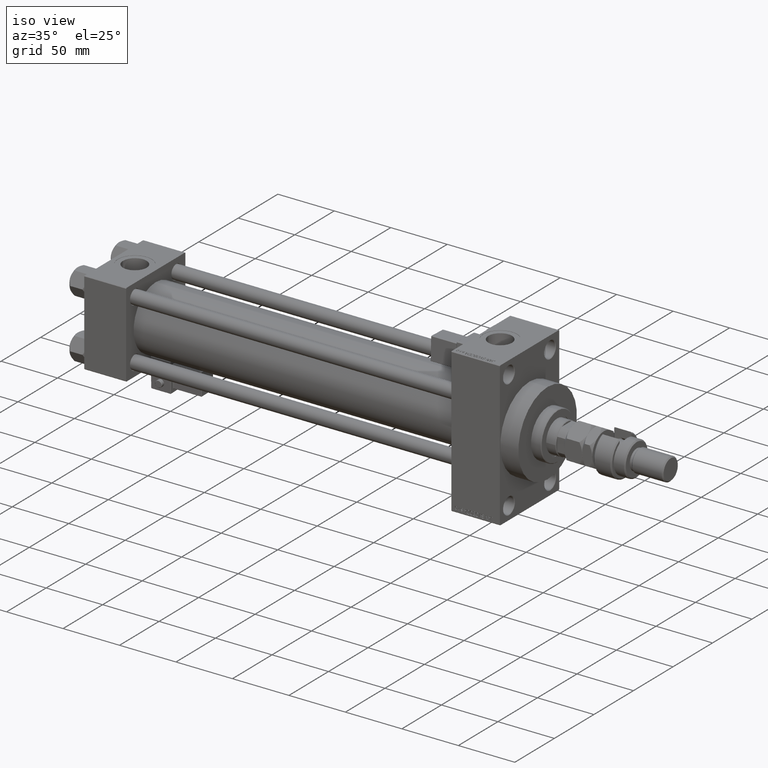
[diagram: clean part render]
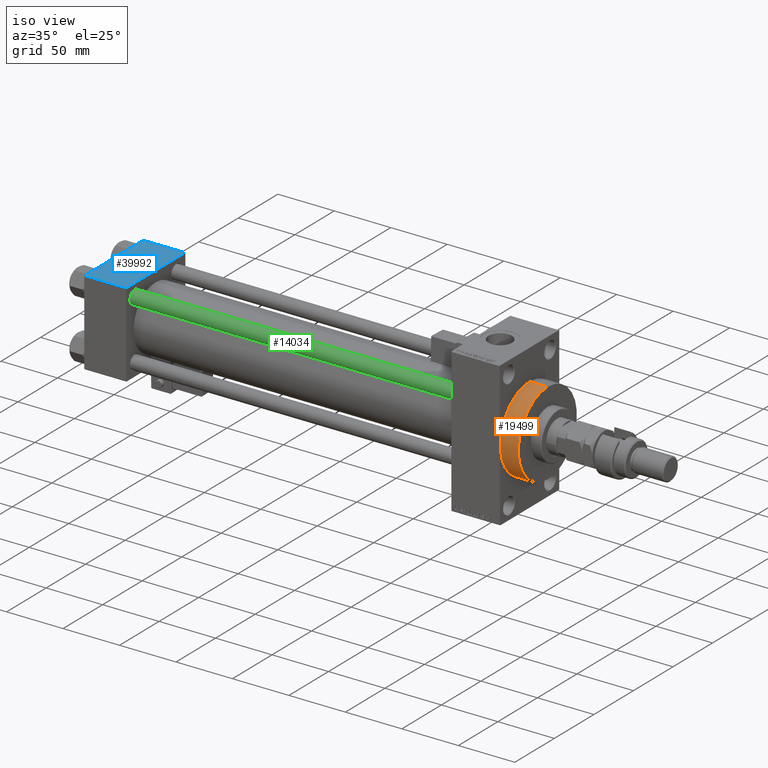
[diagram: same view with three faces highlighted in distinct colors, each labeled with its STEP entity id]
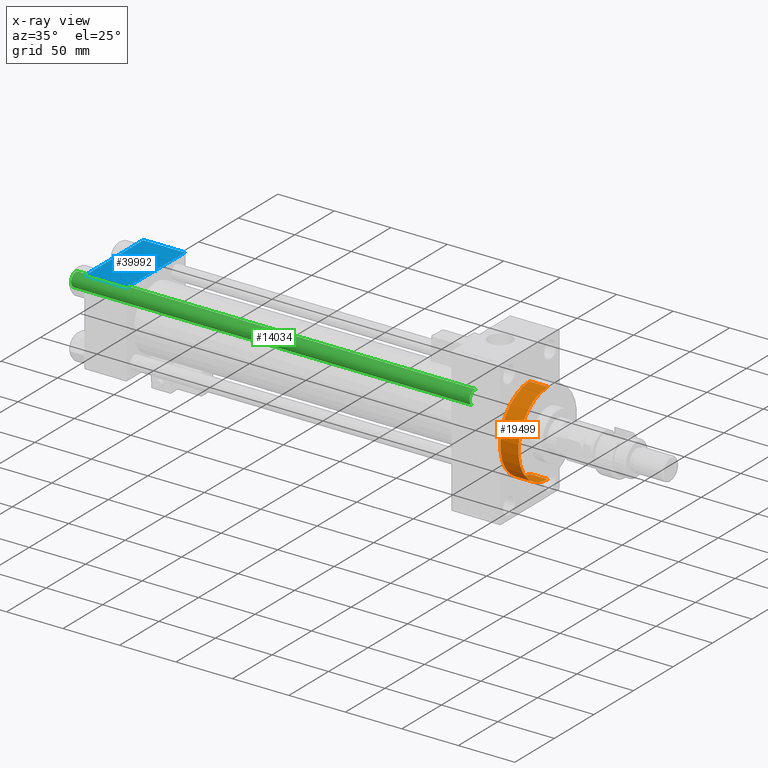
[diagram: x-ray of the same camera — body ghosted, the three highlighted faces saturated]
A machine part, iso view with three faces highlighted in distinct colors.
The next image is the same camera in x-ray (body ghosted, the three faces saturated) — at least one of them is partly hidden behind the body in this view.
Their STEP definitions:

[orange] entity #19499 — the highlighted cylindrical surface (partial cylindrical patch) has radius 37 mm, axis along (-1, -0, -0).
#1671 = FACE_OUTER_BOUND ( 'NONE', #37099, .T. ) ;
#2086 = AXIS2_PLACEMENT_3D ( 'NONE', #49324, #4409, #28714 ) ;
#2318 = CARTESIAN_POINT ( 'NONE',  ( 383.9999999999999432, 0.000000000000000000, 37.00000000000000000 ) ) ;
#4409 = DIRECTION ( 'NONE',  ( 1.000000000000000000, 0.000000000000000000, 0.000000000000000000 ) ) ;
#5897 = CYLINDRICAL_SURFACE ( 'NONE', #47143, 37.00000000000000000 ) ;
#6078 = CARTESIAN_POINT ( 'NONE',  ( 383.9999999999999432, 4.531193156845206793E-15, -37.00000000000000000 ) ) ;
#6595 = CARTESIAN_POINT ( 'NONE',  ( 367.9999999999999432, 0.000000000000000000, 0.000000000000000000 ) ) ;
#6883 = CARTESIAN_POINT ( 'NONE',  ( 367.9999999999999432, 4.531193156845206793E-15, -37.00000000000000000 ) ) ;
#8008 = ORIENTED_EDGE ( 'NONE', *, *, #43311, .T. ) ;
#9587 = AXIS2_PLACEMENT_3D ( 'NONE', #6595, #38042, #34061 ) ;
#11241 = EDGE_CURVE ( 'NONE', #35796, #19002, #22378, .T. ) ;
#13458 = ORIENTED_EDGE ( 'NONE', *, *, #43273, .F. ) ;
#13484 = LINE ( 'NONE', #6078, #41677 ) ;
#13995 = DIRECTION ( 'NONE',  ( -1.000000000000000000, -0.000000000000000000, -0.000000000000000000 ) ) ;
#14684 = CIRCLE ( 'NONE', #9587, 37.00000000000000000 ) ;
#16992 = DIRECTION ( 'NONE',  ( 0.000000000000000000, 0.000000000000000000, 1.000000000000000000 ) ) ;
#17768 = CARTESIAN_POINT ( 'NONE',  ( 383.9999999999999432, 0.000000000000000000, 0.000000000000000000 ) ) ;
#17913 = ORIENTED_EDGE ( 'NONE', *, *, #11241, .T. ) ;
#19002 = VERTEX_POINT ( 'NONE', #52046 ) ;
#19499 = ADVANCED_FACE ( 'NONE', ( #1671 ), #5897, .T. ) ;
#19926 = VERTEX_POINT ( 'NONE', #6883 ) ;
#19983 = DIRECTION ( 'NONE',  ( -1.000000000000000000, -0.000000000000000000, -0.000000000000000000 ) ) ;
#22378 = LINE ( 'NONE', #2318, #27870 ) ;
#24243 = CARTESIAN_POINT ( 'NONE',  ( 383.9999999999999432, 0.000000000000000000, 37.00000000000000000 ) ) ;
#27020 = ORIENTED_EDGE ( 'NONE', *, *, #45762, .F. ) ;
#27870 = VECTOR ( 'NONE', #19983, 1000.000000000000000 ) ;
#28714 = DIRECTION ( 'NONE',  ( 0.000000000000000000, 0.000000000000000000, -1.000000000000000000 ) ) ;
#30307 = VERTEX_POINT ( 'NONE', #44906 ) ;
#34061 = DIRECTION ( 'NONE',  ( 0.000000000000000000, 0.000000000000000000, -1.000000000000000000 ) ) ;
#35796 = VERTEX_POINT ( 'NONE', #24243 ) ;
#37099 = EDGE_LOOP ( 'NONE', ( #13458, #27020, #17913, #8008 ) ) ;
#37536 = CIRCLE ( 'NONE', #2086, 37.00000000000000000 ) ;
#38042 = DIRECTION ( 'NONE',  ( 1.000000000000000000, 0.000000000000000000, 0.000000000000000000 ) ) ;
#41677 = VECTOR ( 'NONE', #13995, 1000.000000000000000 ) ;
#43273 = EDGE_CURVE ( 'NONE', #30307, #19926, #13484, .T. ) ;
#43311 = EDGE_CURVE ( 'NONE', #19002, #19926, #14684, .T. ) ;
#44906 = CARTESIAN_POINT ( 'NONE',  ( 383.9999999999999432, 4.531193156845206793E-15, -37.00000000000000000 ) ) ;
#45762 = EDGE_CURVE ( 'NONE', #35796, #30307, #37536, .T. ) ;
#45803 = DIRECTION ( 'NONE',  ( -1.000000000000000000, -0.000000000000000000, -0.000000000000000000 ) ) ;
#47143 = AXIS2_PLACEMENT_3D ( 'NONE', #17768, #45803, #16992 ) ;
#49324 = CARTESIAN_POINT ( 'NONE',  ( 383.9999999999999432, 0.000000000000000000, 0.000000000000000000 ) ) ;
#52046 = CARTESIAN_POINT ( 'NONE',  ( 367.9999999999999432, 0.000000000000000000, 37.00000000000000000 ) ) ;

[blue] entity #39992 — the highlighted planar face has unit normal (0, 0, -1).
#212 = CIRCLE ( 'NONE', #44929, 15.00000000000000355 ) ;
#1943 = LINE ( 'NONE', #13837, #16451 ) ;
#2122 = CARTESIAN_POINT ( 'NONE',  ( 37.00000000000000000, -37.00000000000000711, 37.49999999999999289 ) ) ;
#3927 = ORIENTED_EDGE ( 'NONE', *, *, #41899, .T. ) ;
#6093 = LINE ( 'NONE', #2122, #37716 ) ;
#6254 = CARTESIAN_POINT ( 'NONE',  ( 37.00000000000000000, 37.49999999999999289, 37.50000000000000000 ) ) ;
#7253 = EDGE_CURVE ( 'NONE', #14521, #30788, #23665, .T. ) ;
#9986 = CARTESIAN_POINT ( 'NONE',  ( 18.50000000000000000, -5.204170427930421283E-15, 37.50000000000000000 ) ) ;
#13837 = CARTESIAN_POINT ( 'NONE',  ( 37.00000000000000000, 37.49999999999999289, 37.50000000000000000 ) ) ;
#14272 = VERTEX_POINT ( 'NONE', #24072 ) ;
#14521 = VERTEX_POINT ( 'NONE', #40377 ) ;
#15285 = DIRECTION ( 'NONE',  ( 1.000000000000000000, 0.000000000000000000, 0.000000000000000000 ) ) ;
#16451 = VECTOR ( 'NONE', #41830, 1000.000000000000000 ) ;
#18590 = EDGE_CURVE ( 'NONE', #30788, #14272, #49493, .T. ) ;
#19177 = FACE_BOUND ( 'NONE', #37588, .T. ) ;
#19675 = DIRECTION ( 'NONE',  ( -1.000000000000000000, 0.000000000000000000, 0.000000000000000000 ) ) ;
#20932 = DIRECTION ( 'NONE',  ( 0.000000000000000000, -1.000000000000000000, -9.251858538542971581E-17 ) ) ;
#21954 = VERTEX_POINT ( 'NONE', #38946 ) ;
#22440 = DIRECTION ( 'NONE',  ( 1.000000000000000000, 0.000000000000000000, 0.000000000000000000 ) ) ;
#23665 = LINE ( 'NONE', #27618, #36977 ) ;
#23843 = ORIENTED_EDGE ( 'NONE', *, *, #45536, .F. ) ;
#24072 = CARTESIAN_POINT ( 'NONE',  ( 0.000000000000000000, -37.00000000000000711, 37.49999999999999289 ) ) ;
#26102 = DIRECTION ( 'NONE',  ( 0.000000000000000000, 0.000000000000000000, 1.000000000000000000 ) ) ;
#26328 = DIRECTION ( 'NONE',  ( 0.000000000000000000, 9.251858538542971581E-17, -1.000000000000000000 ) ) ;
#27618 = CARTESIAN_POINT ( 'NONE',  ( 0.000000000000000000, 36.99999999999999289, 37.50000000000000000 ) ) ;
#27915 = EDGE_LOOP ( 'NONE', ( #28030, #3927, #39054, #32459 ) ) ;
#28030 = ORIENTED_EDGE ( 'NONE', *, *, #18590, .T. ) ;
#29109 = AXIS2_PLACEMENT_3D ( 'NONE', #6254, #26328, #31348 ) ;
#30775 = CIRCLE ( 'NONE', #51058, 15.00000000000000355 ) ;
#30788 = VERTEX_POINT ( 'NONE', #37161 ) ;
#30825 = ORIENTED_EDGE ( 'NONE', *, *, #31366, .F. ) ;
#31128 = CARTESIAN_POINT ( 'NONE',  ( 18.50000000000000000, -5.204170427930421283E-15, 37.50000000000000000 ) ) ;
#31348 = DIRECTION ( 'NONE',  ( 0.000000000000000000, 1.000000000000000000, 9.251858538542971581E-17 ) ) ;
#31366 = EDGE_CURVE ( 'NONE', #41476, #48144, #212, .T. ) ;
#32459 = ORIENTED_EDGE ( 'NONE', *, *, #7253, .T. ) ;
#32837 = CARTESIAN_POINT ( 'NONE',  ( 0.000000000000000000, 37.49999999999999289, 37.50000000000000000 ) ) ;
#36977 = VECTOR ( 'NONE', #19675, 1000.000000000000000 ) ;
#37161 = CARTESIAN_POINT ( 'NONE',  ( 0.000000000000000000, 36.99999999999999289, 37.50000000000000000 ) ) ;
#37588 = EDGE_LOOP ( 'NONE', ( #23843, #30825 ) ) ;
#37716 = VECTOR ( 'NONE', #22440, 1000.000000000000000 ) ;
#38946 = CARTESIAN_POINT ( 'NONE',  ( 37.00000000000000000, -37.00000000000000711, 37.49999999999999289 ) ) ;
#39054 = ORIENTED_EDGE ( 'NONE', *, *, #46220, .F. ) ;
#39848 = DIRECTION ( 'NONE',  ( 0.000000000000000000, 0.000000000000000000, 1.000000000000000000 ) ) ;
#39992 = ADVANCED_FACE ( 'NONE', ( #19177, #42442 ), #46431, .F. ) ;
#40377 = CARTESIAN_POINT ( 'NONE',  ( 37.00000000000000000, 36.99999999999999289, 37.50000000000000000 ) ) ;
#41476 = VERTEX_POINT ( 'NONE', #49249 ) ;
#41830 = DIRECTION ( 'NONE',  ( 0.000000000000000000, -1.000000000000000000, -9.251858538542971581E-17 ) ) ;
#41899 = EDGE_CURVE ( 'NONE', #14272, #21954, #6093, .T. ) ;
#42442 = FACE_OUTER_BOUND ( 'NONE', #27915, .T. ) ;
#44929 = AXIS2_PLACEMENT_3D ( 'NONE', #31128, #39848, #15285 ) ;
#45536 = EDGE_CURVE ( 'NONE', #48144, #41476, #30775, .T. ) ;
#46220 = EDGE_CURVE ( 'NONE', #14521, #21954, #1943, .T. ) ;
#46431 = PLANE ( 'NONE',  #29109 ) ;
#47517 = DIRECTION ( 'NONE',  ( 1.000000000000000000, 0.000000000000000000, 0.000000000000000000 ) ) ;
#47602 = CARTESIAN_POINT ( 'NONE',  ( 33.50000000000000000, -5.204170427930421283E-15, 37.50000000000000000 ) ) ;
#48144 = VERTEX_POINT ( 'NONE', #47602 ) ;
#49249 = CARTESIAN_POINT ( 'NONE',  ( 3.499999999999997780, -3.367200229209391300E-15, 37.50000000000000000 ) ) ;
#49493 = LINE ( 'NONE', #32837, #51331 ) ;
#51058 = AXIS2_PLACEMENT_3D ( 'NONE', #9986, #26102, #47517 ) ;
#51331 = VECTOR ( 'NONE', #20932, 1000.000000000000000 ) ;

[green] entity #14034 — the highlighted cylindrical surface (edge-blend (fillet) strip) has radius 6 mm, axis along (1, 0, 0).
#954 = EDGE_CURVE ( 'NONE', #7843, #30691, #26346, .T. ) ;
#2034 = DIRECTION ( 'NONE',  ( 1.000000000000000000, 0.000000000000000000, 0.000000000000000000 ) ) ;
#2053 = ORIENTED_EDGE ( 'NONE', *, *, #50476, .T. ) ;
#2826 = DIRECTION ( 'NONE',  ( -0.000000000000000000, -0.000000000000000000, 1.000000000000000000 ) ) ;
#4808 = CIRCLE ( 'NONE', #47863, 6.000000000000000888 ) ;
#6064 = DIRECTION ( 'NONE',  ( 1.000000000000000000, 0.000000000000000000, 0.000000000000000000 ) ) ;
#6439 = CARTESIAN_POINT ( 'NONE',  ( -6.000000000000000888, 0.000000000000000000, 0.5000000000000559552 ) ) ;
#6920 = DIRECTION ( 'NONE',  ( -0.000000000000000000, -0.000000000000000000, -1.000000000000000000 ) ) ;
#7843 = VERTEX_POINT ( 'NONE', #32134 ) ;
#8789 = VECTOR ( 'NONE', #22302, 1000.000000000000000 ) ;
#9117 = FACE_OUTER_BOUND ( 'NONE', #25212, .T. ) ;
#10021 = CARTESIAN_POINT ( 'NONE',  ( 0.000000000000000000, 0.000000000000000000, 353.5000000000000000 ) ) ;
#10689 = LINE ( 'NONE', #14653, #8789 ) ;
#11000 = CARTESIAN_POINT ( 'NONE',  ( -6.000000000000000888, 0.000000000000000000, 353.5000000000000000 ) ) ;
#14034 = ADVANCED_FACE ( 'NONE', ( #9117 ), #49543, .T. ) ;
#14653 = CARTESIAN_POINT ( 'NONE',  ( -6.000000000000000888, 0.000000000000000000, 354.0000000000000000 ) ) ;
#18089 = VERTEX_POINT ( 'NONE', #6439 ) ;
#19112 = AXIS2_PLACEMENT_3D ( 'NONE', #10021, #26133, #6064 ) ;
#20384 = ORIENTED_EDGE ( 'NONE', *, *, #49345, .T. ) ;
#22302 = DIRECTION ( 'NONE',  ( -0.000000000000000000, -0.000000000000000000, -1.000000000000000000 ) ) ;
#25212 = EDGE_LOOP ( 'NONE', ( #20384, #44009, #2053, #28557 ) ) ;
#25316 = DIRECTION ( 'NONE',  ( -0.000000000000000000, -0.000000000000000000, -1.000000000000000000 ) ) ;
#26036 = CARTESIAN_POINT ( 'NONE',  ( 6.000000000000000888, 7.347880794884120722E-16, 0.5000000000000559552 ) ) ;
#26133 = DIRECTION ( 'NONE',  ( 0.000000000000000000, 0.000000000000000000, -1.000000000000000000 ) ) ;
#26346 = LINE ( 'NONE', #34262, #51219 ) ;
#28557 = ORIENTED_EDGE ( 'NONE', *, *, #34909, .F. ) ;
#30032 = CARTESIAN_POINT ( 'NONE',  ( 0.000000000000000000, 0.000000000000000000, 0.5000000000000559552 ) ) ;
#30691 = VERTEX_POINT ( 'NONE', #26036 ) ;
#32134 = CARTESIAN_POINT ( 'NONE',  ( 6.000000000000000888, 7.347880794884120722E-16, 353.5000000000000000 ) ) ;
#34262 = CARTESIAN_POINT ( 'NONE',  ( 6.000000000000000888, 7.347880794884120722E-16, 354.0000000000000000 ) ) ;
#34909 = EDGE_CURVE ( 'NONE', #47535, #18089, #10689, .T. ) ;
#41344 = CARTESIAN_POINT ( 'NONE',  ( 0.000000000000000000, 0.000000000000000000, 354.0000000000000000 ) ) ;
#44009 = ORIENTED_EDGE ( 'NONE', *, *, #954, .T. ) ;
#44040 = AXIS2_PLACEMENT_3D ( 'NONE', #41344, #6920, #51578 ) ;
#46974 = CIRCLE ( 'NONE', #19112, 6.000000000000000888 ) ;
#47535 = VERTEX_POINT ( 'NONE', #11000 ) ;
#47863 = AXIS2_PLACEMENT_3D ( 'NONE', #30032, #2826, #2034 ) ;
#49345 = EDGE_CURVE ( 'NONE', #47535, #7843, #46974, .T. ) ;
#49543 = CYLINDRICAL_SURFACE ( 'NONE', #44040, 6.000000000000000888 ) ;
#50476 = EDGE_CURVE ( 'NONE', #30691, #18089, #4808, .T. ) ;
#51219 = VECTOR ( 'NONE', #25316, 1000.000000000000000 ) ;
#51578 = DIRECTION ( 'NONE',  ( -1.000000000000000000, 0.000000000000000000, 0.000000000000000000 ) ) ;